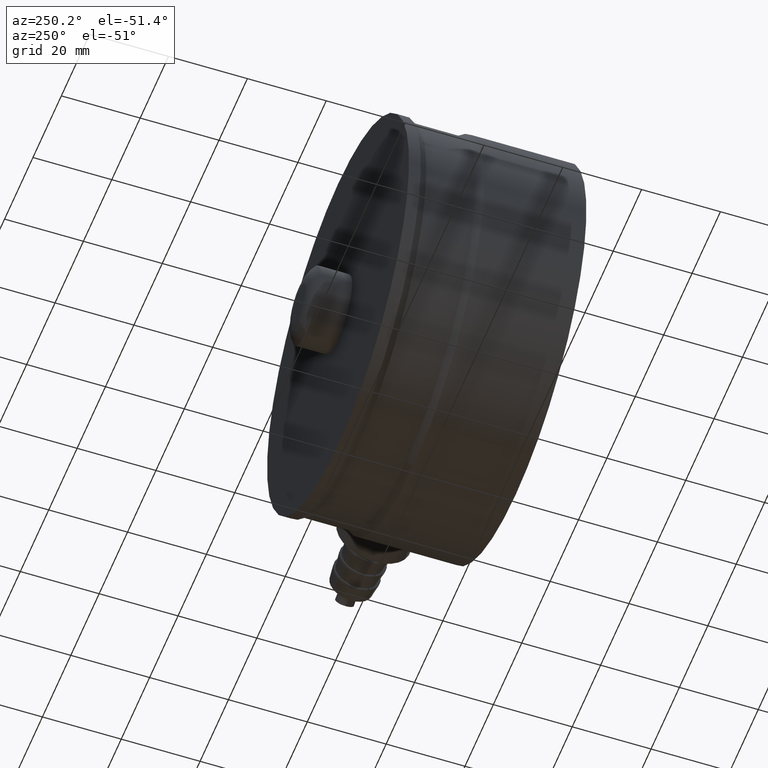
[diagram: clean part render]
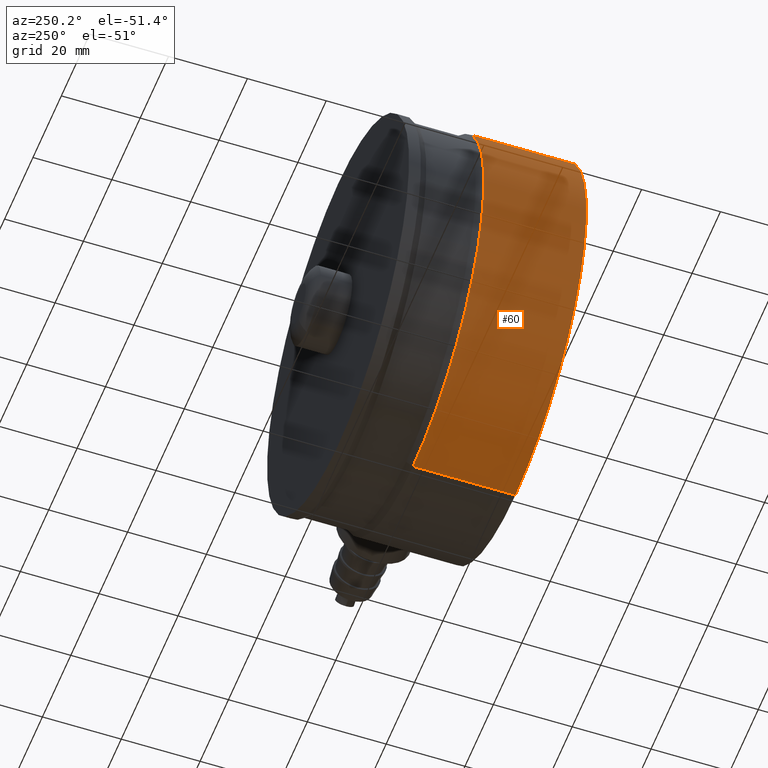
[diagram: same view with one face highlighted and labeled with its STEP entity id]
A machine part, auxiliary view. The second image highlights one B-rep face of the part: STEP entity #60.
In plain terms, the highlighted cylindrical surface (partial cylindrical patch) has radius 50 mm, axis along (-0, -1, -0).
Its self-contained STEP definition (entity closure, byte-faithful):
#13 = EDGE_CURVE ( 'NONE', #139, #159, #1285, .T. ) ;
#54 = ORIENTED_EDGE ( 'NONE', *, *, #13, .T. ) ;
#57 = EDGE_CURVE ( 'NONE', #177, #139, #508, .T. ) ;
#59 = ORIENTED_EDGE ( 'NONE', *, *, #57, .T. ) ;
#60 = ADVANCED_FACE ( 'NONE', ( #506 ), #504, .T. ) ;
#61 = ORIENTED_EDGE ( 'NONE', *, *, #120, .F. ) ;
#120 = EDGE_CURVE ( 'NONE', #177, #155, #638, .T. ) ;
#139 = VERTEX_POINT ( 'NONE', #680 ) ;
#155 = VERTEX_POINT ( 'NONE', #663 ) ;
#159 = VERTEX_POINT ( 'NONE', #661 ) ;
#177 = VERTEX_POINT ( 'NONE', #1049 ) ;
#413 = EDGE_CURVE ( 'NONE', #155, #159, #1534, .T. ) ;
#425 = EDGE_LOOP ( 'NONE', ( #61, #59, #54, #428 ) ) ;
#428 = ORIENTED_EDGE ( 'NONE', *, *, #413, .F. ) ;
#478 = CARTESIAN_POINT ( 'NONE',  ( 0.0000000000000000000, 21.99999999999998900, 0.0000000000000000000 ) ) ;
#479 = AXIS2_PLACEMENT_3D ( 'NONE', #478, #543, #542 ) ;
#504 = CYLINDRICAL_SURFACE ( 'NONE', #531, 50.00000000000000000 ) ;
#506 = FACE_OUTER_BOUND ( 'NONE', #425, .T. ) ;
#508 = CIRCLE ( 'NONE', #479, 50.00000000000000000 ) ;
#531 = AXIS2_PLACEMENT_3D ( 'NONE', #569, #568, #567 ) ;
#542 = DIRECTION ( 'NONE',  ( 0.0000000000000000000, 0.0000000000000000000, -1.000000000000000000 ) ) ;
#543 = DIRECTION ( 'NONE',  ( -0.0000000000000000000, -1.000000000000000000, -0.0000000000000000000 ) ) ;
#567 = DIRECTION ( 'NONE',  ( 0.0000000000000000000, 0.0000000000000000000, -1.000000000000000000 ) ) ;
#568 = DIRECTION ( 'NONE',  ( -0.0000000000000000000, -1.000000000000000000, -0.0000000000000000000 ) ) ;
#569 = CARTESIAN_POINT ( 'NONE',  ( 0.0000000000000000000, 0.0000000000000000000, 0.0000000000000000000 ) ) ;
#623 = CARTESIAN_POINT ( 'NONE',  ( 6.123031769111886300E-015, 0.0000000000000000000, 50.00000000000000000 ) ) ;
#638 = LINE ( 'NONE', #623, #666 ) ;
#661 = CARTESIAN_POINT ( 'NONE',  ( 0.0000000000000000000, -4.000000000000000000, -50.00000000000000000 ) ) ;
#663 = CARTESIAN_POINT ( 'NONE',  ( 6.123031769111886300E-015, -4.000000000000000000, 50.00000000000000000 ) ) ;
#666 = VECTOR ( 'NONE', #667, 1000.000000000000000 ) ;
#667 = DIRECTION ( 'NONE',  ( -0.0000000000000000000, -1.000000000000000000, -0.0000000000000000000 ) ) ;
#680 = CARTESIAN_POINT ( 'NONE',  ( 0.0000000000000000000, 21.99999999999998900, -50.00000000000000000 ) ) ;
#1049 = CARTESIAN_POINT ( 'NONE',  ( 6.123031769111886300E-015, 21.99999999999998900, 50.00000000000000000 ) ) ;
#1282 = DIRECTION ( 'NONE',  ( -0.0000000000000000000, -1.000000000000000000, -0.0000000000000000000 ) ) ;
#1283 = VECTOR ( 'NONE', #1282, 1000.000000000000000 ) ;
#1284 = CARTESIAN_POINT ( 'NONE',  ( 0.0000000000000000000, 0.0000000000000000000, -50.00000000000000000 ) ) ;
#1285 = LINE ( 'NONE', #1284, #1283 ) ;
#1529 = AXIS2_PLACEMENT_3D ( 'NONE', #1536, #1535, #1532 ) ;
#1532 = DIRECTION ( 'NONE',  ( 0.0000000000000000000, 0.0000000000000000000, -1.000000000000000000 ) ) ;
#1534 = CIRCLE ( 'NONE', #1529, 50.00000000000000000 ) ;
#1535 = DIRECTION ( 'NONE',  ( -0.0000000000000000000, -1.000000000000000000, -0.0000000000000000000 ) ) ;
#1536 = CARTESIAN_POINT ( 'NONE',  ( 0.0000000000000000000, -4.000000000000000000, 0.0000000000000000000 ) ) ;